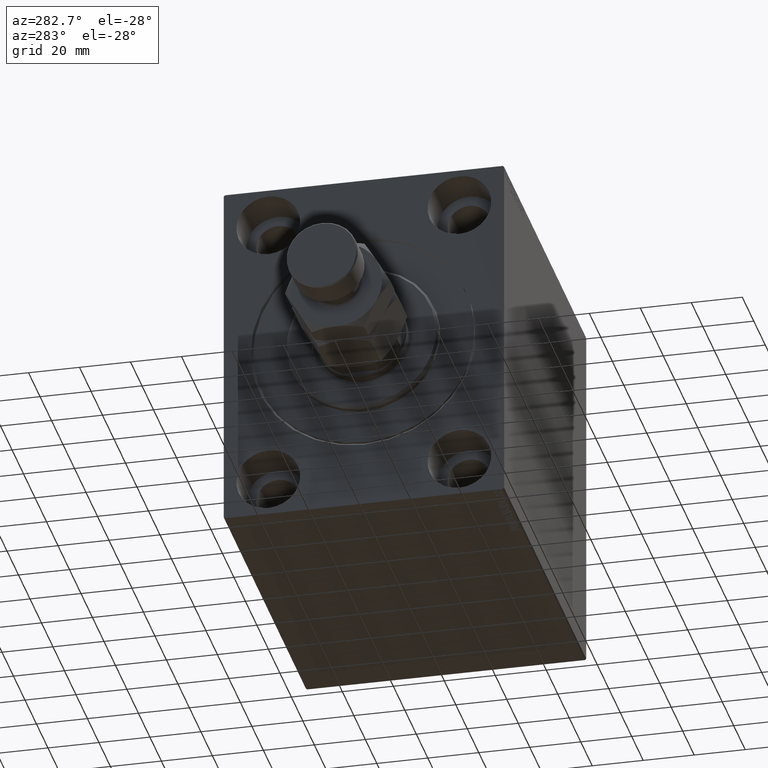
[diagram: clean part render]
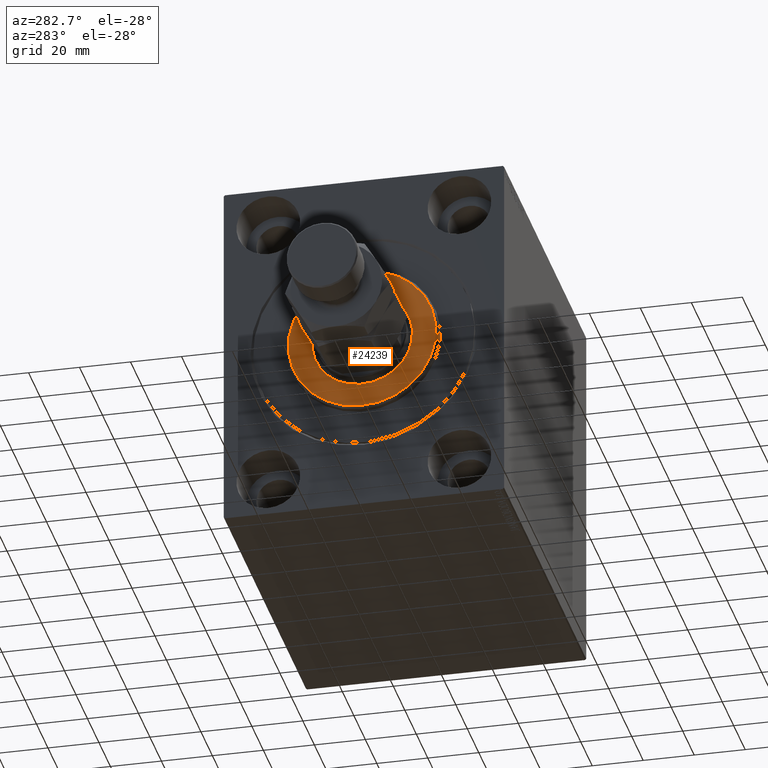
[diagram: same view with one face highlighted and labeled with its STEP entity id]
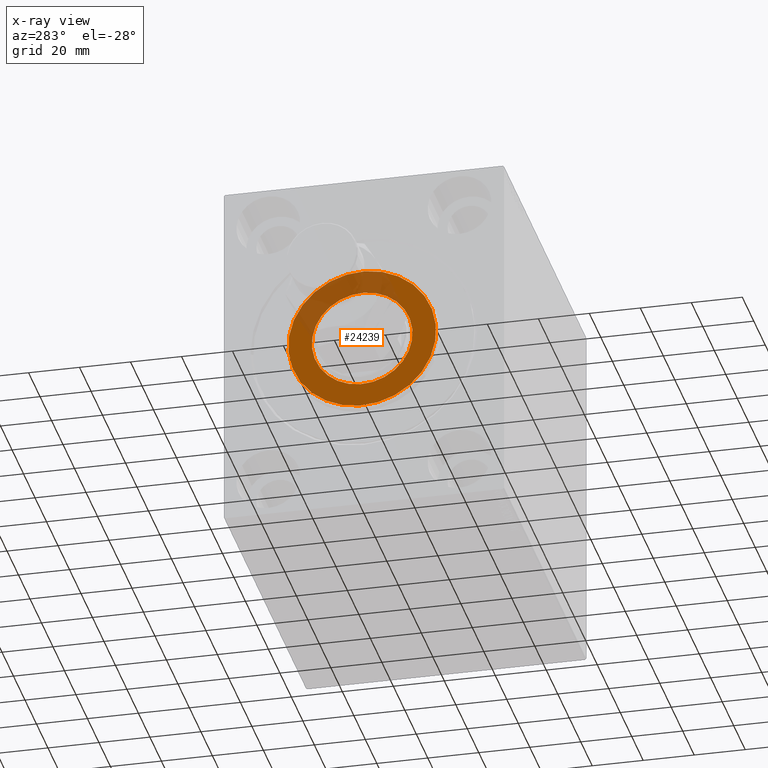
[diagram: x-ray of the same camera — body ghosted, the highlighted face saturated]
A machine part, auxiliary view. The second image highlights one B-rep face of the part: STEP entity #24239.
The next image is the same camera in x-ray: the body ghosted, the highlighted face saturated — about 28% of this face is hidden behind the body in this view.
In plain terms, the highlighted planar face has unit normal (-1, 0, 0).
Its self-contained STEP definition (entity closure, byte-faithful):
#405 = EDGE_LOOP ( 'NONE', ( #14575, #8295 ) ) ;
#2128 = EDGE_LOOP ( 'NONE', ( #21950, #14058 ) ) ;
#2373 = DIRECTION ( 'NONE',  ( 1.000000000000000000, -0.000000000000000000, 0.000000000000000000 ) ) ;
#4315 = AXIS2_PLACEMENT_3D ( 'NONE', #26337, #2373, #29556 ) ;
#5193 = AXIS2_PLACEMENT_3D ( 'NONE', #33314, #9348, #43895 ) ;
#8295 = ORIENTED_EDGE ( 'NONE', *, *, #45271, .T. ) ;
#9305 = CARTESIAN_POINT ( 'NONE',  ( 3.000000000000000000, 0.000000000000000000, 28.99999999999999289 ) ) ;
#9340 = VERTEX_POINT ( 'NONE', #41894 ) ;
#9348 = DIRECTION ( 'NONE',  ( -1.000000000000000000, 0.000000000000000000, -0.000000000000000000 ) ) ;
#9818 = DIRECTION ( 'NONE',  ( 1.000000000000000000, -0.000000000000000000, 0.000000000000000000 ) ) ;
#12037 = CIRCLE ( 'NONE', #15009, 28.99999999999999289 ) ;
#14058 = ORIENTED_EDGE ( 'NONE', *, *, #41704, .T. ) ;
#14575 = ORIENTED_EDGE ( 'NONE', *, *, #24638, .T. ) ;
#15009 = AXIS2_PLACEMENT_3D ( 'NONE', #19989, #9818, #37923 ) ;
#15791 = AXIS2_PLACEMENT_3D ( 'NONE', #23517, #44211, #40984 ) ;
#16236 = CIRCLE ( 'NONE', #5193, 19.75000000000000000 ) ;
#17102 = DIRECTION ( 'NONE',  ( 0.000000000000000000, 0.000000000000000000, -1.000000000000000000 ) ) ;
#17494 = CARTESIAN_POINT ( 'NONE',  ( 3.000000000000000000, 0.000000000000000000, 19.75000000000000000 ) ) ;
#18903 = EDGE_CURVE ( 'NONE', #25743, #9340, #30780, .T. ) ;
#19182 = AXIS2_PLACEMENT_3D ( 'NONE', #30920, #44958, #17102 ) ;
#19989 = CARTESIAN_POINT ( 'NONE',  ( 3.000000000000000000, 0.000000000000000000, 0.000000000000000000 ) ) ;
#21027 = PLANE ( 'NONE',  #19182 ) ;
#21950 = ORIENTED_EDGE ( 'NONE', *, *, #18903, .T. ) ;
#23517 = CARTESIAN_POINT ( 'NONE',  ( 3.000000000000000000, 0.000000000000000000, 0.000000000000000000 ) ) ;
#24239 = ADVANCED_FACE ( 'NONE', ( #34821, #45185 ), #21027, .T. ) ;
#24638 = EDGE_CURVE ( 'NONE', #45347, #44444, #16236, .T. ) ;
#25743 = VERTEX_POINT ( 'NONE', #9305 ) ;
#26337 = CARTESIAN_POINT ( 'NONE',  ( 3.000000000000000000, 0.000000000000000000, 0.000000000000000000 ) ) ;
#27194 = CARTESIAN_POINT ( 'NONE',  ( 3.000000000000000000, 2.418677428316022331E-15, -19.75000000000000000 ) ) ;
#28298 = CIRCLE ( 'NONE', #15791, 19.75000000000000000 ) ;
#29556 = DIRECTION ( 'NONE',  ( 0.000000000000000000, 0.000000000000000000, -1.000000000000000000 ) ) ;
#30780 = CIRCLE ( 'NONE', #4315, 28.99999999999999289 ) ;
#30920 = CARTESIAN_POINT ( 'NONE',  ( 3.000000000000000000, 0.000000000000000000, 0.000000000000000000 ) ) ;
#33314 = CARTESIAN_POINT ( 'NONE',  ( 3.000000000000000000, 0.000000000000000000, 0.000000000000000000 ) ) ;
#34821 = FACE_OUTER_BOUND ( 'NONE', #2128, .T. ) ;
#37923 = DIRECTION ( 'NONE',  ( 0.000000000000000000, 0.000000000000000000, -1.000000000000000000 ) ) ;
#40984 = DIRECTION ( 'NONE',  ( 0.000000000000000000, 0.000000000000000000, -1.000000000000000000 ) ) ;
#41704 = EDGE_CURVE ( 'NONE', #9340, #25743, #12037, .T. ) ;
#41894 = CARTESIAN_POINT ( 'NONE',  ( 3.000000000000000000, 3.612708057484691604E-15, -28.99999999999999289 ) ) ;
#43895 = DIRECTION ( 'NONE',  ( 0.000000000000000000, 0.000000000000000000, -1.000000000000000000 ) ) ;
#44211 = DIRECTION ( 'NONE',  ( -1.000000000000000000, 0.000000000000000000, -0.000000000000000000 ) ) ;
#44444 = VERTEX_POINT ( 'NONE', #27194 ) ;
#44958 = DIRECTION ( 'NONE',  ( 1.000000000000000000, -0.000000000000000000, 0.000000000000000000 ) ) ;
#45185 = FACE_BOUND ( 'NONE', #405, .T. ) ;
#45271 = EDGE_CURVE ( 'NONE', #44444, #45347, #28298, .T. ) ;
#45347 = VERTEX_POINT ( 'NONE', #17494 ) ;